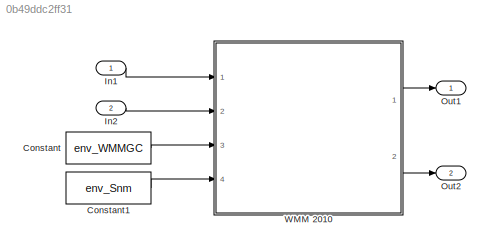
MODEL slx_0b49ddc2ff31
KIND model
CONFIG AbsTol = auto
CONFIG EnableMultiTasking = off
CONFIG FixedStep = auto
CONFIG MaxStep = auto
CONFIG MinStep = auto
CONFIG RelTol = 1e-3
CONFIG SampleTimeConstraint = Unconstrained
CONFIG Solver = VariableStepAuto
CONFIG SolverName = VariableStepAuto
CONFIG StartTime = 0.0
CONFIG StopTime = 10.0
WORKSPACE source: MAT-file member
WORKSPACE env_Snm = [1 1 1.5 1.73205080757 0.866025403784 2.5 3.06186217848 1.9364916731 0.790569415042 4.375 5.53398590529 3.91311896062 ... (90 elements, 90x1)]
WORKSPACE env_WMMGC = [1 1 2 2 2 3 3 3 3 4 4 4 ... (540 elements, 90x6)]
BLOCK [Constant] Constant
  Value = env_WMMGC
BLOCK [Constant] Constant1
  Value = env_Snm
BLOCK [Inport] In1
  IconDisplay = Port number
BLOCK [Inport] In2
  IconDisplay = Port number
  Port = 2
  PortDimensions = 3
BLOCK [Outport] Out1
  IconDisplay = Port number
BLOCK [Outport] Out2
  IconDisplay = Port number
  Port = 2
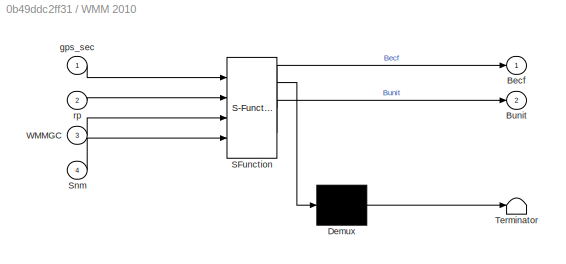
BLOCK [SubSystem] WMM 2010
  ErrorFcn = Stateflow.Translate.translate
  PermitHierarchicalResolution = ExplicitOnly
  Ports = [4, 2]
  RequestExecContextInheritance = off
  SFBlockType = MATLAB Function
  TreatAsAtomicUnit = on
  Variant = off
BLOCK [Demux] WMM 2010/ Demux 
  Outputs = 1
  Ports = [1, 1]
BLOCK [S-Function] WMM 2010/ SFunction 
  EnableBusSupport = on
  FunctionName = sf_sfun
  PortCounts = [4 3]
  Ports = [4, 3]
  SFcnIsStateOwnerBlock = off
  SFunctionDeploymentMode = off
  Tag = Stateflow S-Function ava2 10
BLOCK [Terminator] WMM 2010/ Terminator 
BLOCK [Outport] WMM 2010/Becf
  IconDisplay = Port number
BLOCK [Outport] WMM 2010/Bunit
  IconDisplay = Port number
  Port = 2
BLOCK [Inport] WMM 2010/Snm
  IconDisplay = Port number
  Port = 4
BLOCK [Inport] WMM 2010/WMMGC
  IconDisplay = Port number
  Port = 3
BLOCK [Inport] WMM 2010/gps_sec
  IconDisplay = Port number
BLOCK [Inport] WMM 2010/rp
  IconDisplay = Port number
  Port = 2
LINE Constant1:1 -> WMM 2010:4
LINE Constant:1 -> WMM 2010:3
LINE In1:1 -> WMM 2010:1
LINE In2:1 -> WMM 2010:2
LINE WMM 2010:1 -> Out1:1
LINE WMM 2010:2 -> Out2:1
CHART WMM 2010 states=1 transitions=1
  STATE_LABEL 'eML_blk_kernel()'
  STATE_LABEL 'SCRIPT:\n%% World Magnetic Model (Valid until Dec 31 2015, needs coefficient update and leap year compesation after this date)\n% Requires file magm.m\n\n%% Code\nfunction [Becf, Bunit] = fcn(gps_sec,rp, WMMGC, Snm)\n\n\n[Becf,Bunit]= magm(rp,gps_sec, WMMGC, Snm);\n\nend\n\nfunction [Becf,Bunit]=magm(rp,gps_sec,WMMGC, Snm)\n%#codegen\n% This function computes the magnetic field vector at a given position in spa...<+3608ch>'
